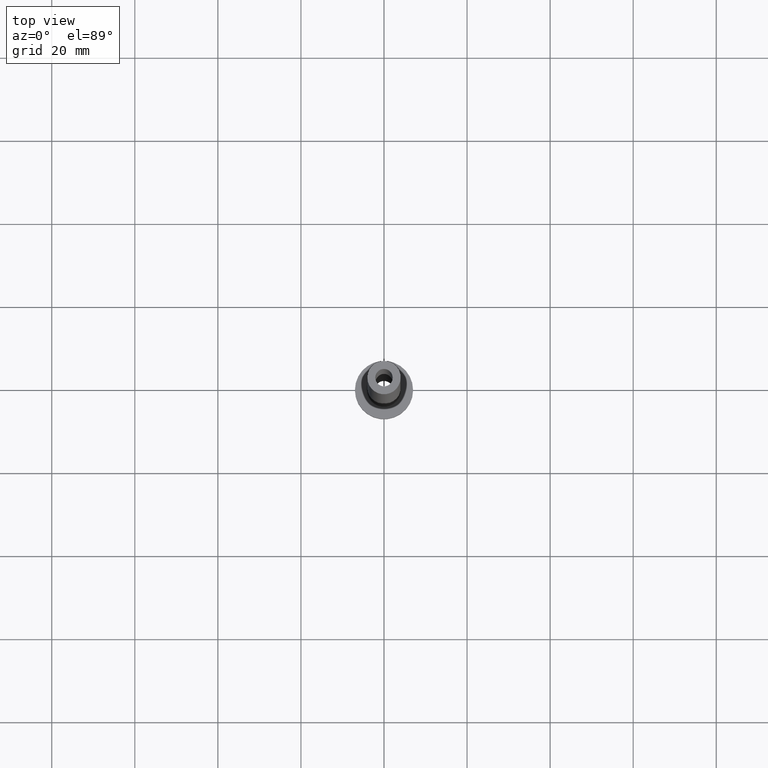
[diagram: clean part render]
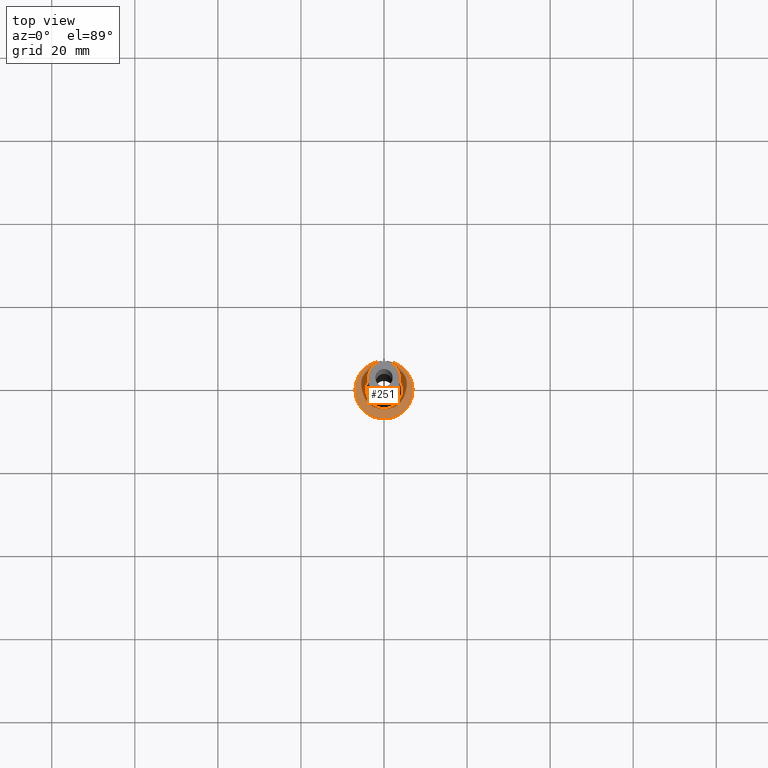
[diagram: same view with one face highlighted and labeled with its STEP entity id]
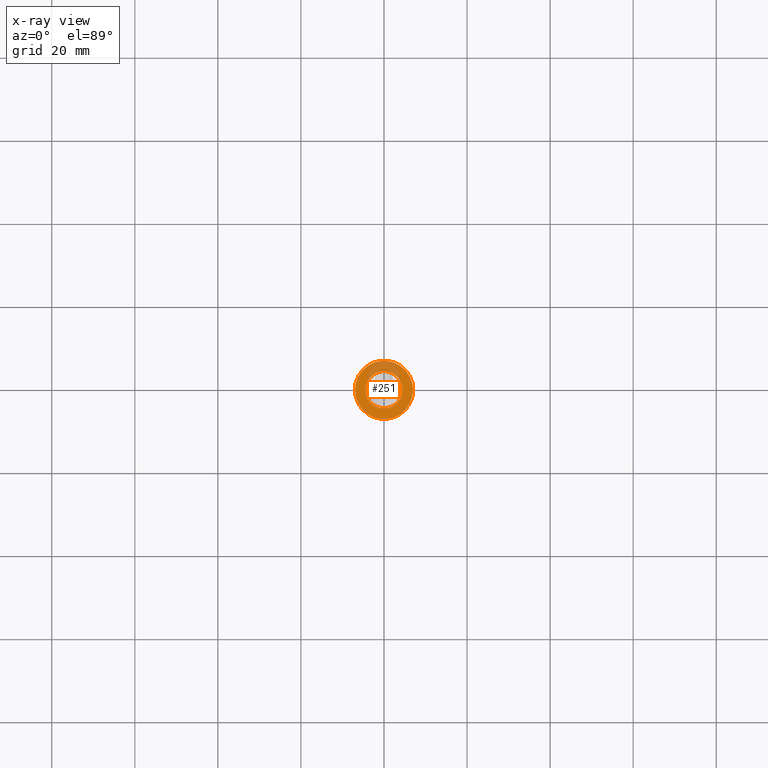
[diagram: x-ray of the same camera — body ghosted, the highlighted face saturated]
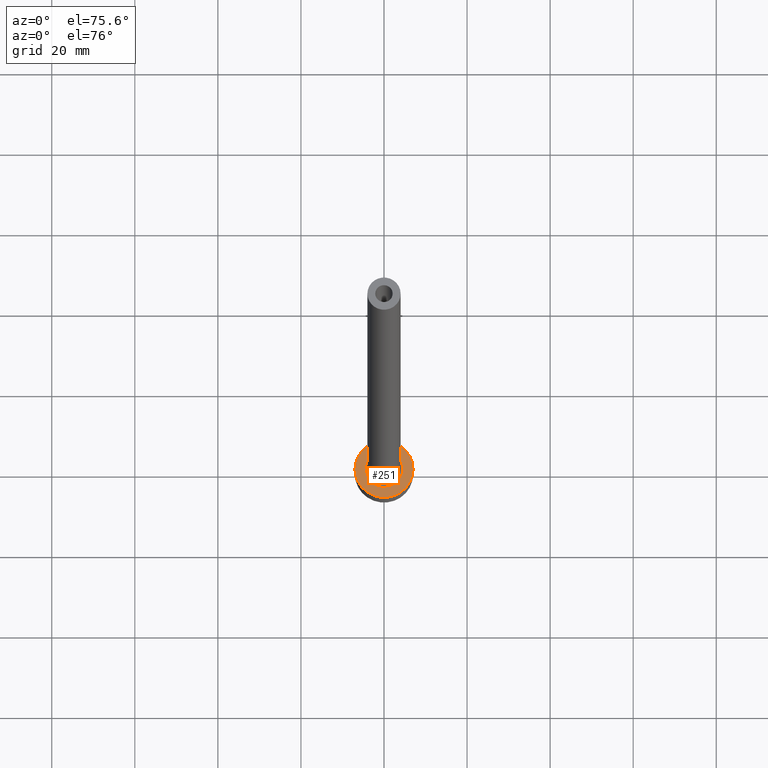
[diagram: same view with one face highlighted and labeled with its STEP entity id]
A machine part, top view. The second image highlights one B-rep face of the part: STEP entity #251.
The next image is the same camera in x-ray: the body ghosted, the highlighted face saturated — about 20% of this face is hidden behind the body in this view.
A second angle (auxiliary view) of the same face is appended — the face is thin or edge-on in the first view.
In plain terms, the highlighted planar face has unit normal (0, 0, 1).
Its self-contained STEP definition (entity closure, byte-faithful):
#5 = CIRCLE ( 'NONE', #305, 7.000000000000000000 ) ;
#6 = AXIS2_PLACEMENT_3D ( 'NONE', #107, #322, #7 ) ;
#7 = DIRECTION ( 'NONE',  ( 1.000000000000000000, 0.000000000000000000, 0.000000000000000000 ) ) ;
#48 = CIRCLE ( 'NONE', #6, 4.500000000000000888 ) ;
#54 = DIRECTION ( 'NONE',  ( -0.000000000000000000, -0.000000000000000000, -1.000000000000000000 ) ) ;
#61 = CARTESIAN_POINT ( 'NONE',  ( 0.000000000000000000, 0.000000000000000000, 5.000000000000000000 ) ) ;
#67 = PLANE ( 'NONE',  #138 ) ;
#76 = DIRECTION ( 'NONE',  ( 0.000000000000000000, 0.000000000000000000, 1.000000000000000000 ) ) ;
#80 = EDGE_LOOP ( 'NONE', ( #423, #260 ) ) ;
#82 = CARTESIAN_POINT ( 'NONE',  ( -7.000000000000000000, 0.000000000000000000, 5.000000000000000000 ) ) ;
#87 = EDGE_LOOP ( 'NONE', ( #440, #123 ) ) ;
#107 = CARTESIAN_POINT ( 'NONE',  ( 0.000000000000000000, 0.000000000000000000, 5.000000000000000000 ) ) ;
#108 = EDGE_CURVE ( 'NONE', #115, #385, #5, .T. ) ;
#115 = VERTEX_POINT ( 'NONE', #302 ) ;
#123 = ORIENTED_EDGE ( 'NONE', *, *, #108, .T. ) ;
#138 = AXIS2_PLACEMENT_3D ( 'NONE', #361, #396, #352 ) ;
#146 = CIRCLE ( 'NONE', #253, 7.000000000000000000 ) ;
#163 = CIRCLE ( 'NONE', #280, 4.500000000000000888 ) ;
#177 = EDGE_CURVE ( 'NONE', #385, #115, #146, .T. ) ;
#193 = DIRECTION ( 'NONE',  ( 1.000000000000000000, 0.000000000000000000, 0.000000000000000000 ) ) ;
#213 = FACE_OUTER_BOUND ( 'NONE', #87, .T. ) ;
#226 = CARTESIAN_POINT ( 'NONE',  ( 0.000000000000000000, 0.000000000000000000, 5.000000000000000000 ) ) ;
#247 = CARTESIAN_POINT ( 'NONE',  ( -4.500000000000000888, 5.510910596163088569E-16, 5.000000000000002665 ) ) ;
#251 = ADVANCED_FACE ( 'NONE', ( #349, #213 ), #67, .T. ) ;
#253 = AXIS2_PLACEMENT_3D ( 'NONE', #61, #346, #332 ) ;
#257 = VERTEX_POINT ( 'NONE', #247 ) ;
#260 = ORIENTED_EDGE ( 'NONE', *, *, #377, .T. ) ;
#261 = DIRECTION ( 'NONE',  ( 1.000000000000000000, 0.000000000000000000, 0.000000000000000000 ) ) ;
#280 = AXIS2_PLACEMENT_3D ( 'NONE', #226, #54, #193 ) ;
#302 = CARTESIAN_POINT ( 'NONE',  ( 7.000000000000000000, 8.572527594031473190E-16, 5.000000000000000000 ) ) ;
#305 = AXIS2_PLACEMENT_3D ( 'NONE', #364, #76, #261 ) ;
#322 = DIRECTION ( 'NONE',  ( -0.000000000000000000, -0.000000000000000000, -1.000000000000000000 ) ) ;
#331 = VERTEX_POINT ( 'NONE', #456 ) ;
#332 = DIRECTION ( 'NONE',  ( 1.000000000000000000, 0.000000000000000000, 0.000000000000000000 ) ) ;
#346 = DIRECTION ( 'NONE',  ( 0.000000000000000000, 0.000000000000000000, 1.000000000000000000 ) ) ;
#349 = FACE_BOUND ( 'NONE', #80, .T. ) ;
#352 = DIRECTION ( 'NONE',  ( 1.000000000000000000, 0.000000000000000000, -0.000000000000000000 ) ) ;
#361 = CARTESIAN_POINT ( 'NONE',  ( 0.000000000000000000, 0.000000000000000000, 5.000000000000000000 ) ) ;
#364 = CARTESIAN_POINT ( 'NONE',  ( 0.000000000000000000, 0.000000000000000000, 5.000000000000000000 ) ) ;
#377 = EDGE_CURVE ( 'NONE', #257, #331, #48, .T. ) ;
#385 = VERTEX_POINT ( 'NONE', #82 ) ;
#396 = DIRECTION ( 'NONE',  ( 0.000000000000000000, 0.000000000000000000, 1.000000000000000000 ) ) ;
#423 = ORIENTED_EDGE ( 'NONE', *, *, #431, .T. ) ;
#431 = EDGE_CURVE ( 'NONE', #331, #257, #163, .T. ) ;
#440 = ORIENTED_EDGE ( 'NONE', *, *, #177, .T. ) ;
#456 = CARTESIAN_POINT ( 'NONE',  ( 4.500000000000000888, 0.000000000000000000, 5.000000000000002665 ) ) ;